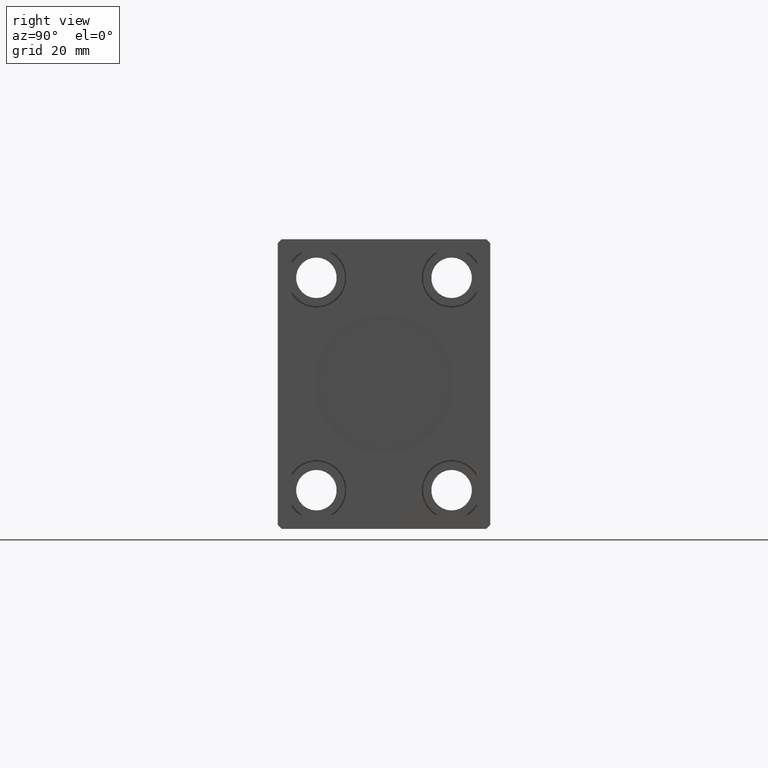
[diagram: clean part render]
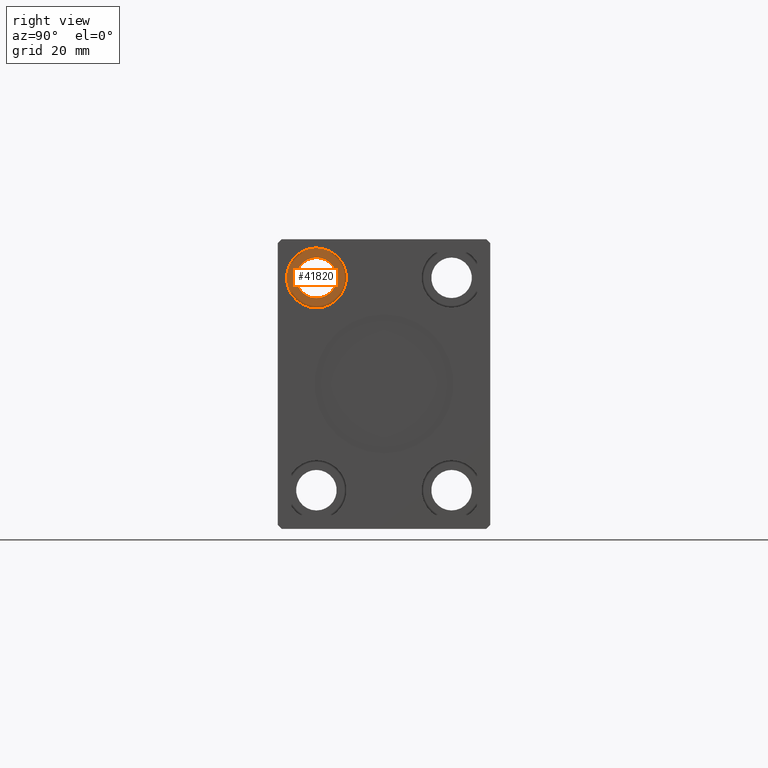
[diagram: same view with one face highlighted and labeled with its STEP entity id]
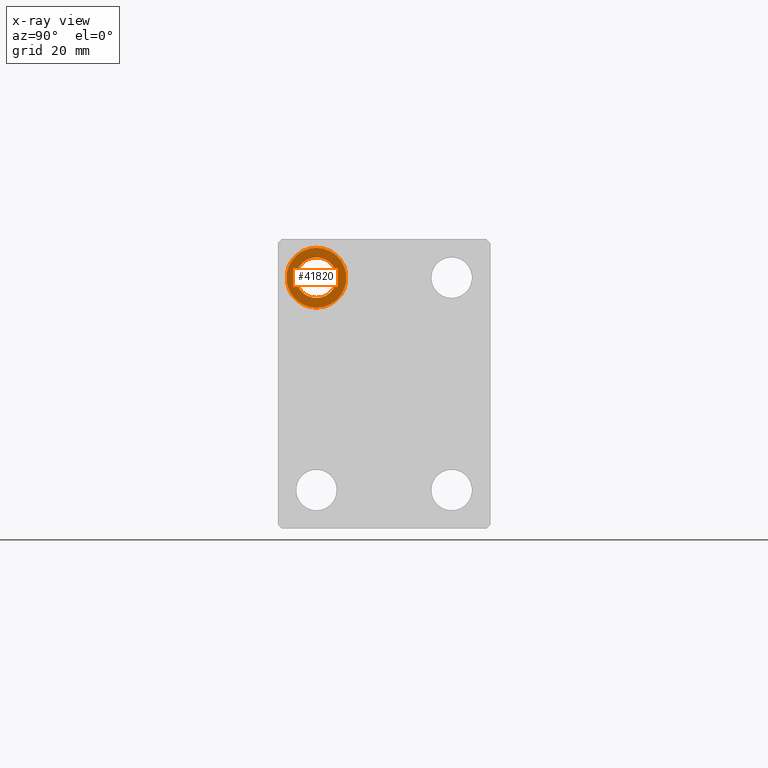
[diagram: x-ray of the same camera — body ghosted, the highlighted face saturated]
A machine part, right view. The second image highlights one B-rep face of the part: STEP entity #41820.
The next image is the same camera in x-ray: the body ghosted, the highlighted face saturated — about 0% of this face is hidden behind the body in this view.
In plain terms, the highlighted planar face has unit normal (1, 0, -0).
Its self-contained STEP definition (entity closure, byte-faithful):
#979 = ORIENTED_EDGE ( 'NONE', *, *, #39446, .F. ) ;
#1839 = CIRCLE ( 'NONE', #32816, 7.750000000000003553 ) ;
#2707 = CARTESIAN_POINT ( 'NONE',  ( 154.6700000000000159, -17.50000000000000000, 27.50000000000000000 ) ) ;
#5292 = AXIS2_PLACEMENT_3D ( 'NONE', #2707, #28988, #25758 ) ;
#7860 = ORIENTED_EDGE ( 'NONE', *, *, #31208, .F. ) ;
#7866 = EDGE_CURVE ( 'NONE', #29284, #9592, #1839, .T. ) ;
#8360 = FACE_BOUND ( 'NONE', #27452, .T. ) ;
#8801 = EDGE_CURVE ( 'NONE', #12830, #38180, #39016, .T. ) ;
#9362 = ORIENTED_EDGE ( 'NONE', *, *, #8801, .F. ) ;
#9592 = VERTEX_POINT ( 'NONE', #40301 ) ;
#11628 = DIRECTION ( 'NONE',  ( 0.000000000000000000, 0.000000000000000000, 1.000000000000000000 ) ) ;
#11915 = EDGE_LOOP ( 'NONE', ( #34484, #979 ) ) ;
#12830 = VERTEX_POINT ( 'NONE', #24141 ) ;
#13228 = CARTESIAN_POINT ( 'NONE',  ( 154.6700000000000159, -17.50000000000000000, 27.50000000000000000 ) ) ;
#16388 = CIRCLE ( 'NONE', #34253, 7.750000000000003553 ) ;
#17897 = DIRECTION ( 'NONE',  ( 1.000000000000000000, 0.000000000000000000, 0.000000000000000000 ) ) ;
#18267 = FACE_OUTER_BOUND ( 'NONE', #11915, .T. ) ;
#18356 = CIRCLE ( 'NONE', #5292, 5.250000000000000888 ) ;
#18389 = AXIS2_PLACEMENT_3D ( 'NONE', #34049, #17897, #31254 ) ;
#23987 = AXIS2_PLACEMENT_3D ( 'NONE', #24941, #37875, #40673 ) ;
#24141 = CARTESIAN_POINT ( 'NONE',  ( 154.6700000000000159, -17.50000000000000000, 22.25000000000000000 ) ) ;
#24941 = CARTESIAN_POINT ( 'NONE',  ( 154.6700000000000159, -17.50000000000000000, 27.50000000000000000 ) ) ;
#25389 = DIRECTION ( 'NONE',  ( -1.000000000000000000, -0.000000000000000000, -0.000000000000000000 ) ) ;
#25758 = DIRECTION ( 'NONE',  ( 0.000000000000000000, 0.000000000000000000, -1.000000000000000000 ) ) ;
#26351 = DIRECTION ( 'NONE',  ( -1.000000000000000000, -0.000000000000000000, -0.000000000000000000 ) ) ;
#27452 = EDGE_LOOP ( 'NONE', ( #7860, #9362 ) ) ;
#28988 = DIRECTION ( 'NONE',  ( 1.000000000000000000, 0.000000000000000000, 0.000000000000000000 ) ) ;
#29159 = DIRECTION ( 'NONE',  ( 0.000000000000000000, 0.000000000000000000, 1.000000000000000000 ) ) ;
#29284 = VERTEX_POINT ( 'NONE', #37772 ) ;
#31208 = EDGE_CURVE ( 'NONE', #38180, #12830, #18356, .T. ) ;
#31254 = DIRECTION ( 'NONE',  ( 0.000000000000000000, 0.000000000000000000, -1.000000000000000000 ) ) ;
#32816 = AXIS2_PLACEMENT_3D ( 'NONE', #38094, #25389, #11628 ) ;
#34049 = CARTESIAN_POINT ( 'NONE',  ( 154.6700000000000159, -17.50000000000000000, 27.50000000000000000 ) ) ;
#34253 = AXIS2_PLACEMENT_3D ( 'NONE', #13228, #26351, #29159 ) ;
#34484 = ORIENTED_EDGE ( 'NONE', *, *, #7866, .F. ) ;
#36469 = CARTESIAN_POINT ( 'NONE',  ( 154.6700000000000159, -17.50000000000000000, 32.75000000000000000 ) ) ;
#37445 = PLANE ( 'NONE',  #23987 ) ;
#37772 = CARTESIAN_POINT ( 'NONE',  ( 154.6700000000000159, -17.50000000000000000, 19.74999999999999645 ) ) ;
#37875 = DIRECTION ( 'NONE',  ( 1.000000000000000000, 0.000000000000000000, -0.000000000000000000 ) ) ;
#38094 = CARTESIAN_POINT ( 'NONE',  ( 154.6700000000000159, -17.50000000000000000, 27.50000000000000000 ) ) ;
#38180 = VERTEX_POINT ( 'NONE', #36469 ) ;
#39016 = CIRCLE ( 'NONE', #18389, 5.250000000000000888 ) ;
#39446 = EDGE_CURVE ( 'NONE', #9592, #29284, #16388, .T. ) ;
#40301 = CARTESIAN_POINT ( 'NONE',  ( 154.6700000000000159, -17.50000000000000000, 35.25000000000000000 ) ) ;
#40673 = DIRECTION ( 'NONE',  ( 0.000000000000000000, 0.000000000000000000, 1.000000000000000000 ) ) ;
#41820 = ADVANCED_FACE ( 'NONE', ( #8360, #18267 ), #37445, .T. ) ;